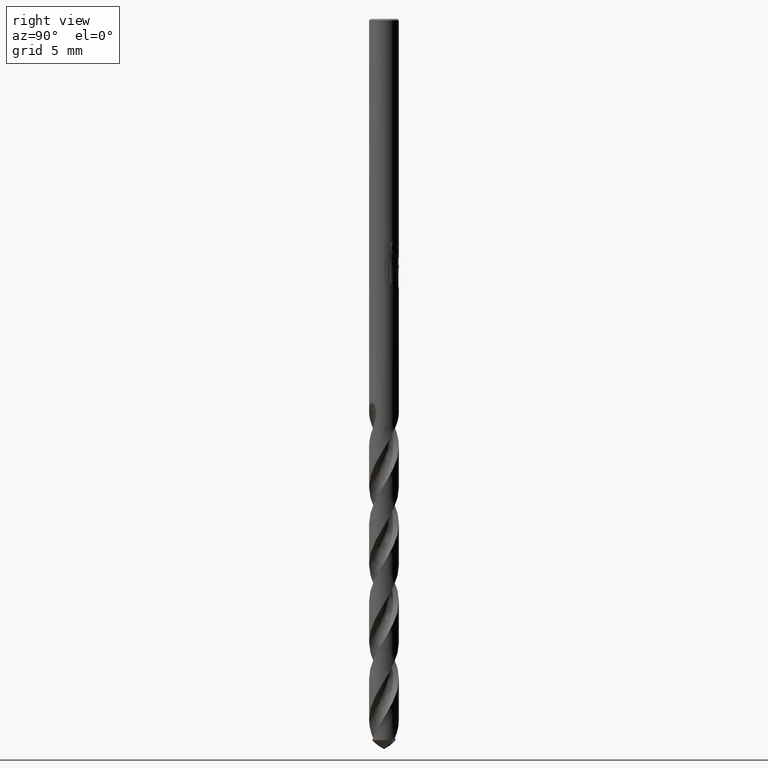
[diagram: clean part render]
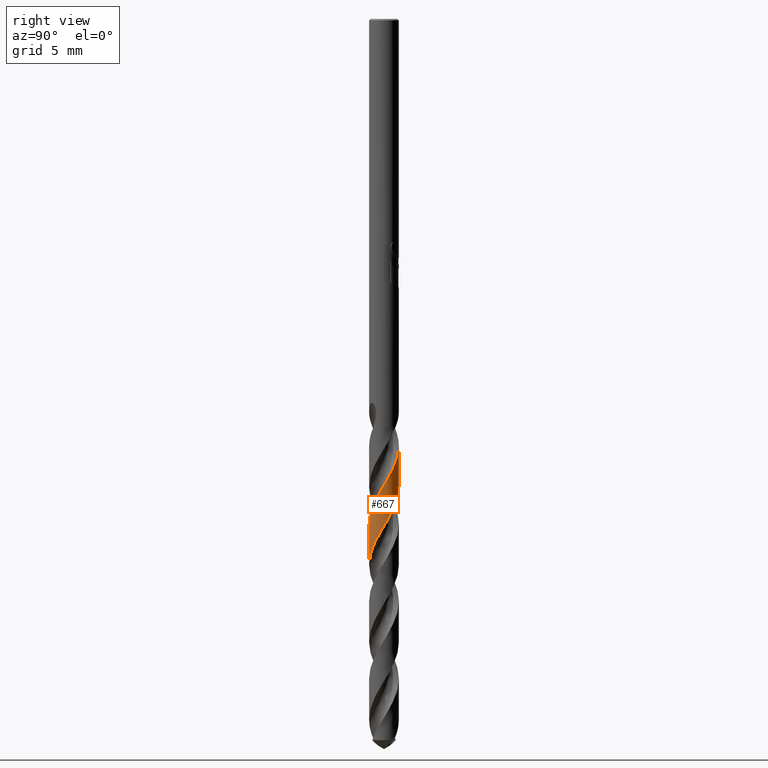
[diagram: same view with one face highlighted and labeled with its STEP entity id]
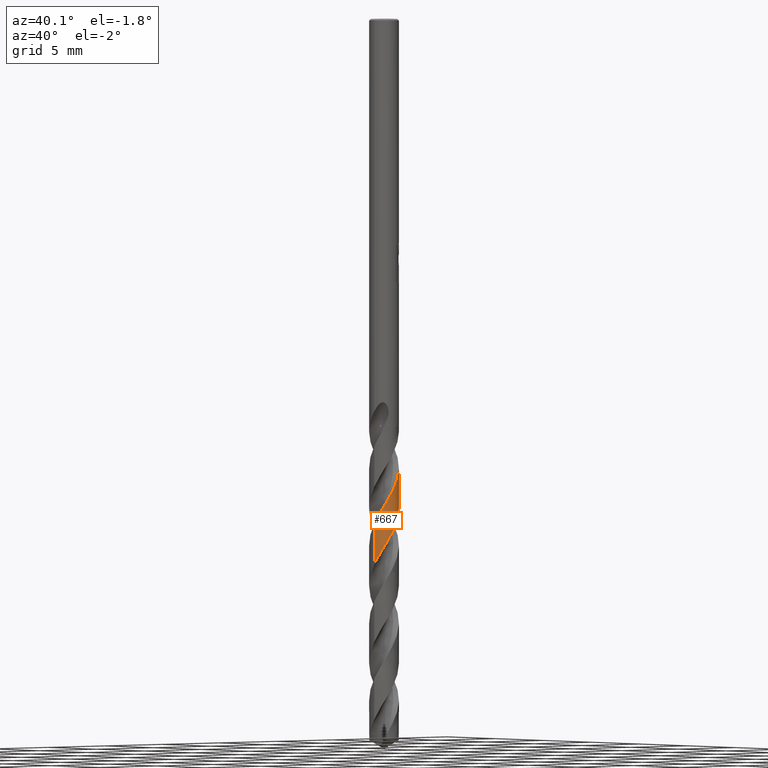
[diagram: same view with one face highlighted and labeled with its STEP entity id]
A machine part, right view. The second image highlights one B-rep face of the part: STEP entity #667.
A second angle (auxiliary view) of the same face is appended — the face is thin or edge-on in the first view.
In plain terms, the highlighted conical surface has half-angle 0 deg.
Its self-contained STEP definition (entity closure, byte-faithful):
#293=EDGE_CURVE('',#393,#299,#824,.T.);
#299=VERTEX_POINT('',#832);
#393=VERTEX_POINT('',#936);
#433=EDGE_CURVE('',#393,#505,#977,.T.);
#505=VERTEX_POINT('',#1054);
#531=VERTEX_POINT('',#1083);
#667=ADVANCED_FACE('',(#1226),#1227,.T.);
#773=EDGE_CURVE('',#531,#505,#1348,.T.);
#779=EDGE_CURVE('',#531,#299,#1355,.T.);
#824=LINE('',#1397,#1398);
#832=CARTESIAN_POINT('',(-1.51799023464849E-010,0.999919146917069,-31.4206878027284));
#936=CARTESIAN_POINT('',(1.0652477144257E-014,0.999906096836467,-28.6802831870996));
#977=B_SPLINE_CURVE_WITH_KNOTS('',3,(#2599,#2600,#2601,#2602,#2603,#2604,#2605,#2606,#2607,#2608,#2609,#2610,#2611,#2612,#2613,#2614,#2615,#2616,#2617,#2618,#2619,#2620,#2621,#2622,#2623,#2624,#2625,#2626,#2627,#2628,#2629,#2630,#2631,#2632,#2633,#2634,#2635,#2636,#2637,#2638,#2639,#2640,#2641,#2642,#2643,#2644,#2645,#2646,#2647,#2648,#2649,#2650,#2651,#2652,#2653,#2654,#2655,#2656,#2657,#2658,#2659,#2660,#2661,#2662,#2663,#2664,#2665,#2666,#2667,#2668,#2669,#2670,#2671,#2672,#2673,#2674,#2675,#2676,#2677,#2678,#2679,#2680,#2681,#2682,#2683,#2684,#2685,#2686,#2687,#2688,#2689,#2690,#2691,#2692,#2693,#2694,#2695,#2696,#2697,#2698,#2699,#2700,#2701,#2702,#2703,#2704,#2705,#2706,#2707,#2708,#2709,#2710,#2711,#2712,#2713,#2714,#2715,#2716,#2717,#2718,#2719,#2720,#2721,#2722,#2723,#2724,#2725,#2726,#2727,#2728,#2729,#2730,#2731,#2732,#2733,#2734,#2735,#2736,#2737,#2738,#2739,#2740,#2741,#2742,#2743,#2744,#2745,#2746,#2747,#2748,#2749,#2750,#2751,#2752,#2753,#2754,#2755,#2756,#2757,#2758,#2759,#2760,#2761,#2762,#2763,#2764,#2765,#2766,#2767,#2768,#2769,#2770,#2771,#2772,#2773,#2774,#2775,#2776,#2777,#2778,#2779,#2780,#2781,#2782,#2783,#2784,#2785,#2786,#2787,#2788,#2789,#2790,#2791,#2792,#2793,#2794,#2795,#2796,#2797,#2798,#2799,#2800,#2801,#2802,#2803,#2804,#2805,#2806),.UNSPECIFIED.,.F.,.F.,(4,2,2,2,2,2,2,2,2,2,2,2,2,2,2,2,2,2,2,2,2,2,2,2,2,2,2,2,2,2,2,2,2,2,2,2,2,2,2,2,2,2,2,2,2,2,2,2,2,2,2,2,2,2,2,2,2,2,2,2,2,2,2,2,2,2,2,2,2,2,2,2,2,2,2,2,2,2,2,2,2,2,2,2,2,2,2,2,2,2,2,2,2,2,2,2,2,2,2,2,2,2,2,4),(0.0,0.070093670708242,0.0892226509933403,0.0981457888768246,0.103952079739878,0.108542523141387,0.112137212113539,0.114929148139967,0.117082761360161,0.118734678135138,0.119996056034912,0.120955781249582,0.12168394898939,0.122235228024858,0.24480868383175,0.273356355975355,0.288902510916104,0.301907356563827,0.317265195362751,0.344957297456819,0.379086675039331,0.424483255215321,0.565256895664594,0.630425794679281,0.679644420351133,0.733074871864472,0.762228760970097,0.835259402492003,1.0057197183772,1.1658654022676,1.18585962247996,1.52860160674236,1.57313255818488,2.03668523874026,2.22333953402721,2.45809219165768,2.94994322032421,3.25617156440019,3.8288138071226,3.94217262629708,4.36112238801579,4.53271253655954,4.80302610480046,5.30941364745821,5.5795891243931,6.13781468433169,6.36980223202512,6.95994976968794,7.01331592364357,7.40012039465199,7.75912614930561,7.78469109723106,8.16815858082124,8.5266956302814,8.55259748258698,8.92980494258499,9.28733368322655,9.34033971356227,9.72933461668136,9.9084120232756,10.2333849386378,10.7985280560881,10.9129363589856,11.3259394095172,11.5042181303728,11.7777920299031,12.2838220434481,12.5527120870136,13.1096086441436,13.3415945511472,13.9304186020947,13.983751450188,14.3694780677714,14.7278340101031,14.75340024316,15.1353898038781,15.4932034728304,15.5191530255325,15.8942037479938,16.2508823478335,16.3041844856681,16.6895760345817,17.0476604404329,17.0604604679671,17.4310471707016,18.1507132899162,18.5013784739701,18.7488030849239,19.3176892963192,19.4300091250434,19.8481253783219,20.0187993666651,20.2886075464374,20.7940084789581,21.0618729570711,21.619220727253,21.8500499881893,22.4371133771515,22.4899614126565,22.8779147357416,23.4854494898643,23.7862900006021,23.9381718812205,24.0892537509298),.UNSPECIFIED.);
#1054=CARTESIAN_POINT('',(2.27809062708682E-016,-0.999930863154706,-33.8809968741904));
#1083=CARTESIAN_POINT('',(1.37562760391856E-012,-0.999943911893831,-36.6211197901034));
#1226=FACE_OUTER_BOUND('',#5834,.T.);
#1227=CONICAL_SURFACE('',#5835,0.99995,4.76209992157318E-006);
#1348=LINE('',#7771,#7772);
#1355=B_SPLINE_CURVE_WITH_KNOTS('',3,(#7782,#7783,#7784,#7785,#7786,#7787,#7788,#7789,#7790,#7791,#7792,#7793,#7794,#7795,#7796,#7797,#7798,#7799,#7800,#7801,#7802,#7803,#7804,#7805,#7806,#7807,#7808,#7809,#7810,#7811,#7812,#7813,#7814,#7815,#7816,#7817,#7818,#7819,#7820,#7821,#7822,#7823,#7824,#7825,#7826,#7827,#7828,#7829,#7830,#7831,#7832,#7833,#7834,#7835,#7836,#7837,#7838,#7839,#7840,#7841,#7842,#7843,#7844,#7845,#7846,#7847,#7848,#7849,#7850,#7851,#7852,#7853,#7854,#7855,#7856,#7857,#7858,#7859,#7860,#7861,#7862,#7863,#7864,#7865,#7866,#7867,#7868,#7869,#7870,#7871,#7872,#7873,#7874,#7875,#7876,#7877,#7878,#7879,#7880,#7881,#7882,#7883,#7884,#7885,#7886,#7887,#7888,#7889,#7890,#7891,#7892,#7893,#7894,#7895,#7896,#7897,#7898,#7899,#7900,#7901,#7902,#7903,#7904,#7905,#7906,#7907,#7908,#7909,#7910,#7911,#7912,#7913,#7914,#7915,#7916,#7917,#7918,#7919,#7920,#7921,#7922,#7923,#7924,#7925,#7926,#7927,#7928,#7929,#7930,#7931,#7932,#7933,#7934,#7935,#7936,#7937,#7938,#7939,#7940,#7941,#7942,#7943),.UNSPECIFIED.,.F.,.F.,(4,2,2,2,2,2,2,2,2,2,2,2,2,2,2,2,2,2,2,2,2,2,2,2,2,2,2,2,2,2,2,2,2,2,2,2,2,2,2,2,2,2,2,2,2,2,2,2,2,2,2,2,2,2,2,2,2,2,2,2,2,2,2,2,2,2,2,2,2,2,2,2,2,2,2,2,2,2,2,2,4),(0.0,0.140564455657881,0.705910972769532,0.96913414407209,1.35393639490201,1.53594426473142,1.7530889950736,2.45448441391358,2.49523314449073,3.09830556355897,3.34016229741105,4.03058293585882,4.11538521269099,4.75953051351781,4.95781017947195,5.33016819367588,5.51299303997374,5.73848300044366,6.43810748282622,6.4800193485302,7.07575574318855,7.59217081390022,7.95721429921044,8.15742826828851,8.53060160815402,8.7143819419641,9.09848745840183,9.45959927504986,10.0113818257194,10.3773914054012,10.5676570087411,10.9532641035751,11.1367819995707,11.3497099029085,12.0661004877584,12.1064505496225,12.7260932607966,13.1069669425992,13.4657956578065,13.9984170846046,14.3614654606973,14.5547068180242,14.9317204920314,15.1141059748938,15.3324123124755,16.036191029549,16.0772770219455,16.6808370477866,16.9232669903893,17.6134567355966,17.6988892302687,18.3416180911916,18.5429115427709,18.9133919437673,19.0967365593222,19.4801550427055,19.8383239885714,20.4003267929132,20.7656810762996,20.9518643670263,21.3422117921762,21.5251617782646,21.7342006610223,22.1053374795917,22.4338506619976,22.4534439191066,23.0081590553991,23.8180861949536,23.9479194944267,24.0768830279872,24.163270212141,24.2538189139902,24.3949603098037,24.5084417014939,24.5931835029819,24.6441638688701,24.689904101752,24.7480899906125,24.86688419515,25.1213909236893,25.4279416749134),.UNSPECIFIED.);
#1397=CARTESIAN_POINT('',(-1.22355463160886E-016,0.99995,-37.8995696904862));
#1398=VECTOR('',#8391,1.0);
#2599=CARTESIAN_POINT('',(-0.695006639413528,0.71886426311742,-27.405));
#2600=CARTESIAN_POINT('',(-0.686753916768532,0.726843229698256,-27.4253502132792));
#2601=CARTESIAN_POINT('',(-0.678323015206344,0.734720573492868,-27.445708737283));
#2602=CARTESIAN_POINT('',(-0.667299952437083,0.744662066626922,-27.4716005979767));
#2603=CARTESIAN_POINT('',(-0.664921790348519,0.746786438456378,-27.4771456817759));
#2604=CARTESIAN_POINT('',(-0.661409255279312,0.749893888844219,-27.4852733811152));
#2605=CARTESIAN_POINT('',(-0.660288507372421,0.750880929202602,-27.4878575092011));
#2606=CARTESIAN_POINT('',(-0.658432427064547,0.752508188052604,-27.4921217399208));
#2607=CARTESIAN_POINT('',(-0.657699276534681,0.753149065441544,-27.4938021799012));
#2608=CARTESIAN_POINT('',(-0.656383716012707,0.7542956601953,-27.4968104643701));
#2609=CARTESIAN_POINT('',(-0.655801918011095,0.754801552819003,-27.4981383901501));
#2610=CARTESIAN_POINT('',(-0.654762789199801,0.75570299854625,-27.5005057279552));
#2611=CARTESIAN_POINT('',(-0.654305849341278,0.756098669678374,-27.5015452072493));
#2612=CARTESIAN_POINT('',(-0.65349294986344,0.756801281530981,-27.5033917411134));
#2613=CARTESIAN_POINT('',(-0.653137234249793,0.757108299069921,-27.5041988453015));
#2614=CARTESIAN_POINT('',(-0.65250649155641,0.757651916042392,-27.505628344354));
#2615=CARTESIAN_POINT('',(-0.652231613782794,0.757888564023244,-27.5062507732045));
#2616=CARTESIAN_POINT('',(-0.651745513181739,0.758306597509196,-27.5073505232775));
#2617=CARTESIAN_POINT('',(-0.651534380223361,0.758488012947103,-27.5078278665955));
#2618=CARTESIAN_POINT('',(-0.651161806637446,0.75880787533276,-27.5086696366418));
#2619=CARTESIAN_POINT('',(-0.651000419269214,0.758946340464901,-27.5090340774535));
#2620=CARTESIAN_POINT('',(-0.65071610988029,0.759190111235994,-27.5096757663384));
#2621=CARTESIAN_POINT('',(-0.65059321913052,0.759295427704186,-27.5099530230204));
#2622=CARTESIAN_POINT('',(-0.650377013084256,0.759480623642356,-27.5104406189358));
#2623=CARTESIAN_POINT('',(-0.650283716070796,0.759560509412632,-27.510650963144));
#2624=CARTESIAN_POINT('',(-0.650119742914925,0.759700859415881,-27.5110205411348));
#2625=CARTESIAN_POINT('',(-0.650049077239646,0.759761327407562,-27.5111797780874));
#2626=CARTESIAN_POINT('',(-0.634263197970109,0.773265348984374,-27.5467434081671));
#2627=CARTESIAN_POINT('',(-0.618091721199027,0.786268234308424,-27.5813691539059));
#2628=CARTESIAN_POINT('',(-0.597112869549945,0.802049225557741,-27.6243469517687));
#2629=CARTESIAN_POINT('',(-0.593118582100216,0.805007721581712,-27.6324500303653));
#2630=CARTESIAN_POINT('',(-0.586895794777429,0.809544959485163,-27.6449629053831));
#2631=CARTESIAN_POINT('',(-0.584692888697846,0.811137484505697,-27.6493714128908));
#2632=CARTESIAN_POINT('',(-0.58063001811265,0.814049401456039,-27.657465982856));
#2633=CARTESIAN_POINT('',(-0.578773428977938,0.815370477906136,-27.6611512050839));
#2634=CARTESIAN_POINT('',(-0.574710915180997,0.818240301669586,-27.6691871524839));
#2635=CARTESIAN_POINT('',(-0.572503308006053,0.819786468027862,-27.6735361711871));
#2636=CARTESIAN_POINT('',(-0.566292602875384,0.824098947190494,-27.6857260027351));
#2637=CARTESIAN_POINT('',(-0.562274739911441,0.826845598469103,-27.69355945903));
#2638=CARTESIAN_POINT('',(-0.553253988293155,0.832915979026763,-27.711052678553));
#2639=CARTESIAN_POINT('',(-0.548246152952279,0.83622077976043,-27.7207002484902));
#2640=CARTESIAN_POINT('',(-0.536512936314599,0.843813244860268,-27.7432048699239));
#2641=CARTESIAN_POINT('',(-0.529787962963132,0.848052427439174,-27.7560441851921));
#2642=CARTESIAN_POINT('',(-0.501649246832621,0.865317924127809,-27.8097335469335));
#2643=CARTESIAN_POINT('',(-0.480027388163827,0.877487083075364,-27.8507251090004));
#2644=CARTESIAN_POINT('',(-0.448028556968267,0.893982697163793,-27.9105244663407));
#2645=CARTESIAN_POINT('',(-0.437823760084602,0.899024296675206,-27.9294722045672));
#2646=CARTESIAN_POINT('',(-0.419782952585181,0.90755792205989,-27.9627150719036));
#2647=CARTESIAN_POINT('',(-0.411972758605289,0.911129908574778,-27.9770246068078));
#2648=CARTESIAN_POINT('',(-0.39558930854043,0.918369103900306,-28.0068562455782));
#2649=CARTESIAN_POINT('',(-0.387003304509916,0.922020362989878,-28.0223857662019));
#2650=CARTESIAN_POINT('',(-0.373645491477292,0.927481086105418,-28.0463750296144));
#2651=CARTESIAN_POINT('',(-0.368912419384235,0.929373923664618,-28.0548424616103));
#2652=CARTESIAN_POINT('',(-0.352262386837468,0.935885140999944,-28.0845121112813));
#2653=CARTESIAN_POINT('',(-0.34025928024056,0.940315969726997,-28.1056920511544));
#2654=CARTESIAN_POINT('',(-0.299955542492785,0.954319807017216,-28.176300233873));
#2655=CARTESIAN_POINT('',(-0.271298246767259,0.962860047691806,-28.2256351193585));
#2656=CARTESIAN_POINT('',(-0.215025468129447,0.976914639000762,-28.3214634848969));
#2657=CARTESIAN_POINT('',(-0.187520090511672,0.982563819635035,-28.3678331633429));
#2658=CARTESIAN_POINT('',(-0.156385422201784,0.987605983937985,-28.4200878338204));
#2659=CARTESIAN_POINT('',(-0.152925982237492,0.988147603981866,-28.4258901622732));
#2660=CARTESIAN_POINT('',(-0.0901077499026485,0.99764472430652,-28.5311712174467));
#2661=CARTESIAN_POINT('',(-0.0300263996940724,1.00126029162375,-28.6305722496939));
#2662=CARTESIAN_POINT('',(0.0378516387060977,0.999220208993788,-28.7429434680311));
#2663=CARTESIAN_POINT('',(0.0456524561608959,0.998894259336931,-28.7558576520909));
#2664=CARTESIAN_POINT('',(0.134612600613999,0.994132846492307,-28.903274161865));
#2665=CARTESIAN_POINT('',(0.21496417253504,0.979905880997458,-29.0375734821443));
#2666=CARTESIAN_POINT('',(0.32400406634097,0.946525438066899,-29.2262523226919));
#2667=CARTESIAN_POINT('',(0.354820349367274,0.935410396564348,-29.280364161259));
#2668=CARTESIAN_POINT('',(0.423045643601221,0.906943991137279,-29.4026367892316));
#2669=CARTESIAN_POINT('',(0.460005384697146,0.888766476798985,-29.4706688088671));
#2670=CARTESIAN_POINT('',(0.570545284234841,0.825665380552749,-29.6816282771529));
#2671=CARTESIAN_POINT('',(0.639602602364786,0.77342034697775,-29.8239649566117));
#2672=CARTESIAN_POINT('',(0.739439529402851,0.675234307444447,-30.055563235672));
#2673=CARTESIAN_POINT('',(0.774623045609713,0.634559193072659,-30.1441952913441));
#2674=CARTESIAN_POINT('',(0.865702173059835,0.510352364155037,-30.3993845764073));
#2675=CARTESIAN_POINT('',(0.91256587458917,0.420892054422219,-30.5647266035907));
#2676=CARTESIAN_POINT('',(0.951799081395376,0.307093153025406,-30.7638236361788));
#2677=CARTESIAN_POINT('',(0.957716592485911,0.288108311073887,-30.7967031880622));
#2678=CARTESIAN_POINT('',(0.982824500445155,0.198208484021114,-30.9512646293067));
#2679=CARTESIAN_POINT('',(0.994733752909929,0.125465949533516,-31.0727953982745));
#2680=CARTESIAN_POINT('',(1.00012926131684,0.0220058066491092,-31.2442705923059));
#2681=CARTESIAN_POINT('',(1.00033912012399,-0.00811978019228018,-31.2940537463489));
#2682=CARTESIAN_POINT('',(0.997375026846471,-0.085631527150049,-31.4223420164812));
#2683=CARTESIAN_POINT('',(0.992190988925557,-0.132822120102011,-31.5006704724957));
#2684=CARTESIAN_POINT('',(0.96775721157738,-0.266773115117882,-31.7262874308687));
#2685=CARTESIAN_POINT('',(0.940254799042581,-0.351662420484673,-31.8728099234179));
#2686=CARTESIAN_POINT('',(0.881378462479163,-0.474622383265117,-32.0982829453705));
#2687=CARTESIAN_POINT('',(0.857892023454633,-0.515859116582686,-32.1765843877127));
#2688=CARTESIAN_POINT('',(0.777240614668079,-0.636650498911196,-32.4172511404923));
#2689=CARTESIAN_POINT('',(0.711193145679822,-0.709689806378089,-32.5785841700248));
#2690=CARTESIAN_POINT('',(0.604080003694383,-0.797870843264288,-32.8080425652806));
#2691=CARTESIAN_POINT('',(0.571105299565382,-0.821793944685254,-32.8753488316377));
#2692=CARTESIAN_POINT('',(0.449492350279048,-0.899175823904581,-33.1142096257867));
#2693=CARTESIAN_POINT('',(0.35403844609804,-0.940875675472023,-33.2845707550027));
#2694=CARTESIAN_POINT('',(0.244764201641353,-0.969554584945675,-33.4714362954081));
#2695=CARTESIAN_POINT('',(0.235671769935242,-0.971804776935171,-33.4869283746576));
#2696=CARTESIAN_POINT('',(0.160425624276658,-0.989308701809274,-33.6147883372985));
#2697=CARTESIAN_POINT('',(0.0929163607015371,-0.997914884801917,-33.7271120608067));
#2698=CARTESIAN_POINT('',(-0.037918554517366,-1.00119597447331,-33.9438175932776));
#2699=CARTESIAN_POINT('',(-0.100924789852824,-0.996820689435417,-34.0477665711908));
#2700=CARTESIAN_POINT('',(-0.16754887935839,-0.985805207916072,-34.1594739124959));
#2701=CARTESIAN_POINT('',(-0.17197175176866,-0.985043303272319,-34.1668992672581));
#2702=CARTESIAN_POINT('',(-0.242646814391678,-0.972378109269838,-34.2857247507943));
#2703=CARTESIAN_POINT('',(-0.307525355377784,-0.953846759576048,-34.3970979707006));
#2704=CARTESIAN_POINT('',(-0.428498936189091,-0.905658033689903,-34.6127230132165));
#2705=CARTESIAN_POINT('',(-0.484644436537839,-0.876900312496369,-34.7165528564608));
#2706=CARTESIAN_POINT('',(-0.54156599610197,-0.840593668830966,-34.8282326979777));
#2707=CARTESIAN_POINT('',(-0.545383592440042,-0.838121858617368,-34.8357559561481));
#2708=CARTESIAN_POINT('',(-0.604540136260077,-0.799243941078773,-34.9528914053511));
#2709=CARTESIAN_POINT('',(-0.656130619533818,-0.757462775464233,-35.0624910792383));
#2710=CARTESIAN_POINT('',(-0.74782394249175,-0.666763161968653,-35.2760719715944));
#2711=CARTESIAN_POINT('',(-0.788205751207529,-0.618508581799039,-35.3796515612292));
#2712=CARTESIAN_POINT('',(-0.829085110562936,-0.559090094874818,-35.4989458948367));
#2713=CARTESIAN_POINT('',(-0.834254218292357,-0.551347305109489,-35.514344148414));
#2714=CARTESIAN_POINT('',(-0.876450904154172,-0.486189054909068,-35.6428258771342));
#2715=CARTESIAN_POINT('',(-0.907609142107263,-0.425195949814982,-35.7558583581695));
#2716=CARTESIAN_POINT('',(-0.943675229274378,-0.332185440337191,-35.9210320314239));
#2717=CARTESIAN_POINT('',(-0.953659205334565,-0.302334537207727,-35.9730573224241));
#2718=CARTESIAN_POINT('',(-0.977759707004186,-0.217095697406817,-36.1195755033947));
#2719=CARTESIAN_POINT('',(-0.988551194326964,-0.160947801628575,-36.2137665078166));
#2720=CARTESIAN_POINT('',(-1.00483612882753,-0.00555999392392716,-36.4726540335806));
#2721=CARTESIAN_POINT('',(-1.00044428769664,0.0941633443102953,-36.6361247902674));
#2722=CARTESIAN_POINT('',(-0.977551425517382,0.211394081807374,-36.8336701359631));
#2723=CARTESIAN_POINT('',(-0.973104620585946,0.231000961307233,-36.8669057010192));
#2724=CARTESIAN_POINT('',(-0.949900690907907,0.32069209409509,-37.0202915979203));
#2725=CARTESIAN_POINT('',(-0.924134390380528,0.388761067437378,-37.1403090519516));
#2726=CARTESIAN_POINT('',(-0.877020112880812,0.48136421732638,-37.3122853406539));
#2727=CARTESIAN_POINT('',(-0.86150621467564,0.508610355345955,-37.3640923203327));
#2728=CARTESIAN_POINT('',(-0.818993489498733,0.575725198477796,-37.4954853363186));
#2729=CARTESIAN_POINT('',(-0.790374652667592,0.614420530692086,-37.5748847037179));
#2730=CARTESIAN_POINT('',(-0.70126575406703,0.71834615970371,-37.8017182063994));
#2731=CARTESIAN_POINT('',(-0.63464731238641,0.777844130684637,-37.9483755117807));
#2732=CARTESIAN_POINT('',(-0.521844091305756,0.85429334459571,-38.1737412382991));
#2733=CARTESIAN_POINT('',(-0.480898765627594,0.877991874327116,-38.2517990942533));
#2734=CARTESIAN_POINT('',(-0.350558561572465,0.941583643623026,-38.4921007295296));
#2735=CARTESIAN_POINT('',(-0.256773645941833,0.971373649869129,-38.6533170188177));
#2736=CARTESIAN_POINT('',(-0.119824411476885,0.993587452317887,-38.8827660136803));
#2737=CARTESIAN_POINT('',(-0.0792198691903892,0.997644292224647,-38.9501818849833));
#2738=CARTESIAN_POINT('',(0.0648261644408162,1.00319673105455,-39.1890503369547));
#2739=CARTESIAN_POINT('',(0.168228789848566,0.991128107587619,-39.3593117667112));
#2740=CARTESIAN_POINT('',(0.277023714758896,0.960864978249517,-39.5460903442484));
#2741=CARTESIAN_POINT('',(0.286021087886315,0.958225277622019,-39.561598234159));
#2742=CARTESIAN_POINT('',(0.359775745419039,0.935455551821412,-39.6893449624786));
#2743=CARTESIAN_POINT('',(0.422359870207525,0.908915401062738,-39.8015409214051));
#2744=CARTESIAN_POINT('',(0.536970219699267,0.845902400182247,-40.0181005085615));
#2745=CARTESIAN_POINT('',(0.589193292845565,0.810398250624942,-40.1220328146723));
#2746=CARTESIAN_POINT('',(0.641205468825297,0.767331740976666,-40.2337350868614));
#2747=CARTESIAN_POINT('',(0.644648845604042,0.764441220540653,-40.2411728735483));
#2748=CARTESIAN_POINT('',(0.699226287327762,0.71799566457223,-40.3597685523926));
#2749=CARTESIAN_POINT('',(0.745854942755058,0.669428288595159,-40.4709013809104));
#2750=CARTESIAN_POINT('',(0.82604446445556,0.567039415425263,-40.6862499989589));
#2751=CARTESIAN_POINT('',(0.860083049218522,0.513952335555321,-40.7900466212903));
#2752=CARTESIAN_POINT('',(0.891004891181469,0.453938011334622,-40.9017179483927));
#2753=CARTESIAN_POINT('',(0.893067584242251,0.449866417687105,-40.9092677619003));
#2754=CARTESIAN_POINT('',(0.924514737480465,0.386723492653713,-41.0259860524446));
#2755=CARTESIAN_POINT('',(0.948002775981741,0.324916272414912,-41.1351460376702));
#2756=CARTESIAN_POINT('',(0.981619605220943,0.200721654515048,-41.3482131834101));
#2757=CARTESIAN_POINT('',(0.992281054823529,0.138752128273821,-41.4517238425782));
#2758=CARTESIAN_POINT('',(0.997777090188427,0.0668119541803517,-41.5710579256033));
#2759=CARTESIAN_POINT('',(0.998359821529904,0.0574519465296993,-41.5865681345096));
#2760=CARTESIAN_POINT('',(1.00207185175236,-0.0196408238902493,-41.7143010229554));
#2761=CARTESIAN_POINT('',(0.998436031607347,-0.0875135716107802,-41.8264809989604));
#2762=CARTESIAN_POINT('',(0.978231988853873,-0.216723738906868,-42.0430211230321));
#2763=CARTESIAN_POINT('',(0.962640001604031,-0.277916196852699,-42.1469501604798));
#2764=CARTESIAN_POINT('',(0.94062306411142,-0.33937414416436,-42.2549373936865));
#2765=CARTESIAN_POINT('',(0.93985617094631,-0.341492272399253,-42.258663806052));
#2766=CARTESIAN_POINT('',(0.916667685352149,-0.404868006585401,-42.3703148851898));
#2767=CARTESIAN_POINT('',(0.888320271119357,-0.463768558599271,-42.4782440084467));
#2768=CARTESIAN_POINT('',(0.788680161938753,-0.627662406346478,-42.7958898126613));
#2769=CARTESIAN_POINT('',(0.702958183637244,-0.722370335515099,-43.0033569079751));
#2770=CARTESIAN_POINT('',(0.552630880999388,-0.835675970719435,-43.3152048091599));
#2771=CARTESIAN_POINT('',(0.500022479477483,-0.868183757273476,-43.4170809779756));
#2772=CARTESIAN_POINT('',(0.405692477550411,-0.915022467844324,-43.5912520083081));
#2773=CARTESIAN_POINT('',(0.365473268535533,-0.931814022209443,-43.663210860847));
#2774=CARTESIAN_POINT('',(0.229681007036042,-0.978372146065053,-43.9010697765702));
#2775=CARTESIAN_POINT('',(0.130640916436772,-0.996457525749521,-44.0658968022336));
#2776=CARTESIAN_POINT('',(0.0107381066165294,-1.00011825833702,-44.2642867385257));
#2777=CARTESIAN_POINT('',(-0.00903581397154658,-1.00013497880045,-44.2969773990934));
#2778=CARTESIAN_POINT('',(-0.102342640436742,-0.997447915438514,-44.4515289015777));
#2779=CARTESIAN_POINT('',(-0.175457937218122,-0.987216708749126,-44.5732393724294));
#2780=CARTESIAN_POINT('',(-0.275912126553741,-0.961634335476445,-44.7448016198239));
#2781=CARTESIAN_POINT('',(-0.304689789105093,-0.952908019868414,-44.7944916381613));
#2782=CARTESIAN_POINT('',(-0.377852797419124,-0.927066896978932,-44.9228129044513));
#2783=CARTESIAN_POINT('',(-0.421449427225678,-0.908075482181509,-45.0012682625773));
#2784=CARTESIAN_POINT('',(-0.542294576554512,-0.84486211201313,-45.2272364996318));
#2785=CARTESIAN_POINT('',(-0.615292601628564,-0.793293348695876,-45.3739783408085));
#2786=CARTESIAN_POINT('',(-0.715111404545527,-0.700582656672464,-45.5992746190324));
#2787=CARTESIAN_POINT('',(-0.74734770129535,-0.666083172088604,-45.6771779105046));
#2788=CARTESIAN_POINT('',(-0.838745016333204,-0.553263006165778,-45.9177521149974));
#2789=CARTESIAN_POINT('',(-0.888977304430699,-0.468338342079244,-46.0793878994039));
#2790=CARTESIAN_POINT('',(-0.941389173440904,-0.339736123219456,-46.3090523072778));
#2791=CARTESIAN_POINT('',(-0.954415542342138,-0.301199647790672,-46.3762576458159));
#2792=CARTESIAN_POINT('',(-0.992121453270396,-0.162319378616921,-46.6147119590385));
#2793=CARTESIAN_POINT('',(-1.00359630074804,-0.0589684314062471,-46.784769523164));
#2794=CARTESIAN_POINT('',(-0.998595665254315,0.0536637071773066,-46.9712321819434));
#2795=CARTESIAN_POINT('',(-0.998052930049265,0.0629566935558766,-46.9866267853196));
#2796=CARTESIAN_POINT('',(-0.992444568018656,0.140395920658205,-47.1151144194585));
#2797=CARTESIAN_POINT('',(-0.980537032468603,0.207852624710246,-47.2281686147256));
#2798=CARTESIAN_POINT('',(-0.932585030153615,0.376458857379641,-47.5184399256826));
#2799=CARTESIAN_POINT('',(-0.886997549087021,0.473991522221592,-47.6941503347334));
#2800=CARTESIAN_POINT('',(-0.797056741589461,0.606218893334785,-47.9590259904984));
#2801=CARTESIAN_POINT('',(-0.763820203032471,0.647601031162033,-48.0465909805931));
#2802=CARTESIAN_POINT('',(-0.709066201533681,0.705648416002296,-48.1785421067));
#2803=CARTESIAN_POINT('',(-0.689922282824406,0.724377153552844,-48.2227784529905));
#2804=CARTESIAN_POINT('',(-0.650281884559348,0.760159061167426,-48.3110793220681));
#2805=CARTESIAN_POINT('',(-0.629829891220908,0.777187936538501,-48.3550625865524));
#2806=CARTESIAN_POINT('',(-0.608731574648638,0.793376247455006,-48.3991393809724));
#5834=EDGE_LOOP('',(#8775,#8776,#8777,#8778));
#5835=AXIS2_PLACEMENT_3D('',#8779,#8780,#8781);
#7771=CARTESIAN_POINT('',(1.22553561540051E-016,-0.99995,-37.8995696904862));
#7772=VECTOR('',#8974,1.0);
#7782=CARTESIAN_POINT('',(-0.738484525051719,-0.67427042517015,-48.3991393809724));
#7783=CARTESIAN_POINT('',(-0.722199315005534,-0.692106272565409,-48.35898905715));
#7784=CARTESIAN_POINT('',(-0.705339529610619,-0.709276450287738,-48.3187399679762));
#7785=CARTESIAN_POINT('',(-0.617729785424609,-0.792308193506981,-48.117561982592));
#7786=CARTESIAN_POINT('',(-0.53816816169285,-0.848412606628382,-47.9591542025126));
#7787=CARTESIAN_POINT('',(-0.411158045886165,-0.912681508742219,-47.7237100044493));
#7788=CARTESIAN_POINT('',(-0.369552527325461,-0.930297163590966,-47.6485890662762));
#7789=CARTESIAN_POINT('',(-0.264753109744293,-0.966557372480458,-47.4645833204485));
#7790=CARTESIAN_POINT('',(-0.200442660016673,-0.981927470895965,-47.3561282568962));
#7791=CARTESIAN_POINT('',(-0.103973603421656,-0.99506552730784,-47.1954615719139));
#7792=CARTESIAN_POINT('',(-0.0728596298296796,-0.997823310659707,-47.1439326218183));
#7793=CARTESIAN_POINT('',(-0.00455217296671234,-1.00067453909161,-47.0306717324577));
#7794=CARTESIAN_POINT('',(0.0325771020062908,-1.00014922136005,-46.9688059508543));
#7795=CARTESIAN_POINT('',(0.188959270596307,-0.989245724266842,-46.7084358859468));
#7796=CARTESIAN_POINT('',(0.305707973679284,-0.959572063556649,-46.5143929488935));
#7797=CARTESIAN_POINT('',(0.420677671741299,-0.907225690007048,-46.3040624505032));
#7798=CARTESIAN_POINT('',(0.426957484545644,-0.904287404632888,-46.2925092983669));
#7799=CARTESIAN_POINT('',(0.52609439421267,-0.856632316758311,-46.1094570126849));
#7800=CARTESIAN_POINT('',(0.611614923219036,-0.797865416588582,-45.9410527638497));
#7801=CARTESIAN_POINT('',(0.716885875927187,-0.698403557398639,-45.7014017591294));
#7802=CARTESIAN_POINT('',(0.745151172716409,-0.668149737055001,-45.6325083997187));
#7803=CARTESIAN_POINT('',(0.846306494784769,-0.545523237120697,-45.3684316947228));
#7804=CARTESIAN_POINT('',(0.904506802091092,-0.442318284594167,-45.1773920805992));
#7805=CARTESIAN_POINT('',(0.948239372122953,-0.317832728097977,-44.9579148437989));
#7806=CARTESIAN_POINT('',(0.952722592307633,-0.304131180416973,-44.9338834902299));
#7807=CARTESIAN_POINT('',(0.98880663848588,-0.18518052744856,-44.7272045356481));
#7808=CARTESIAN_POINT('',(1.00316935284512,-0.0755265524892393,-44.5482782947757));
#7809=CARTESIAN_POINT('',(0.998226970857536,0.0681871703622886,-44.3098118033893));
#7810=CARTESIAN_POINT('',(0.995352948405098,0.101858463290165,-44.2534818325813));
#7811=CARTESIAN_POINT('',(0.982188357173267,0.198224366580504,-44.092014779339));
#7812=CARTESIAN_POINT('',(0.967616208646302,0.260266351971846,-43.9873997487296));
#7813=CARTESIAN_POINT('',(0.93714724149427,0.350272334577914,-43.8306007354687));
#7814=CARTESIAN_POINT('',(0.925740546419785,0.379387239958744,-43.7790329503057));
#7815=CARTESIAN_POINT('',(0.897305876097893,0.443033935710796,-43.6636070012304));
#7816=CARTESIAN_POINT('',(0.879623673713499,0.477164172754448,-43.5995999179408));
#7817=CARTESIAN_POINT('',(0.799400228556712,0.612416719920957,-43.3383914320007));
#7818=CARTESIAN_POINT('',(0.721071717432096,0.702911528629259,-43.1455100604279));
#7819=CARTESIAN_POINT('',(0.623284372833302,0.781994301472576,-42.9362034188597));
#7820=CARTESIAN_POINT('',(0.617722208691774,0.78639531290022,-42.9243818005519));
#7821=CARTESIAN_POINT('',(0.53226363884951,0.852546701034206,-42.7444772765386));
#7822=CARTESIAN_POINT('',(0.443407953480435,0.902002266099788,-42.5792834322102));
#7823=CARTESIAN_POINT('',(0.26603709232243,0.967928801037208,-42.2663299027652));
#7824=CARTESIAN_POINT('',(0.179983198328796,0.987567810031899,-42.1202672236055));
#7825=CARTESIAN_POINT('',(0.0304203724141995,1.00143992401368,-41.8722912994017));
#7826=CARTESIAN_POINT('',(-0.0318201278840287,1.00138324211251,-41.7702306425811));
#7827=CARTESIAN_POINT('',(-0.127404566661899,0.992401015135547,-41.6110304881607));
#7828=CARTESIAN_POINT('',(-0.161001948686243,0.98750481164016,-41.5544368146233));
#7829=CARTESIAN_POINT('',(-0.2563757485849,0.968611790519179,-41.3930194069383));
#7830=CARTESIAN_POINT('',(-0.317260389422051,0.95042940782693,-41.2887059628722));
#7831=CARTESIAN_POINT('',(-0.405134201255511,0.91475483835804,-41.1322107378044));
#7832=CARTESIAN_POINT('',(-0.433525790166505,0.90164304112015,-41.0806386969442));
#7833=CARTESIAN_POINT('',(-0.519112542617691,0.857150920194061,-40.9209265413749));
#7834=CARTESIAN_POINT('',(-0.573913671307043,0.821474165488676,-40.81225084292));
#7835=CARTESIAN_POINT('',(-0.672873417007595,0.742253506095299,-40.6026327508775));
#7836=CARTESIAN_POINT('',(-0.717185294131617,0.69953089589547,-40.5017153477991));
#7837=CARTESIAN_POINT('',(-0.818594916441859,0.581923515336604,-40.2449868114184));
#7838=CARTESIAN_POINT('',(-0.869588934551328,0.50256127073063,-40.0890846862779));
#7839=CARTESIAN_POINT('',(-0.934797766701728,0.360496230219901,-39.8310714388432));
#7840=CARTESIAN_POINT('',(-0.955396355827141,0.301645882378218,-39.7288079678262));
#7841=CARTESIAN_POINT('',(-0.978175617313712,0.210071746601936,-39.5722045844872));
#7842=CARTESIAN_POINT('',(-0.984435954880597,0.178446877150586,-39.518461285887));
#7843=CARTESIAN_POINT('',(-0.998750606292269,0.0817991847153003,-39.356305899369));
#7844=CARTESIAN_POINT('',(-1.00198001256782,0.0161857921076621,-39.2485416826285));
#7845=CARTESIAN_POINT('',(-0.997189947745499,-0.0806253239972092,-39.0885710932637));
#7846=CARTESIAN_POINT('',(-0.994184817899785,-0.111707754439696,-39.0370511716718));
#7847=CARTESIAN_POINT('',(-0.984586581144885,-0.178343812516999,-38.9254984830411));
#7848=CARTESIAN_POINT('',(-0.977508195463067,-0.213743066209354,-38.865349259055));
#7849=CARTESIAN_POINT('',(-0.938388528798712,-0.36611458176961,-38.6040953760411));
#7850=CARTESIAN_POINT('',(-0.887185984616681,-0.476885560361333,-38.4076231344038));
#7851=CARTESIAN_POINT('',(-0.813663005234211,-0.581293119050283,-38.1948754347008));
#7852=CARTESIAN_POINT('',(-0.809664933869712,-0.58684989261496,-38.1834785026486));
#7853=CARTESIAN_POINT('',(-0.742953491580983,-0.677567801648206,-37.9961451671542));
#7854=CARTESIAN_POINT('',(-0.667170111709713,-0.752339015263871,-37.8235785508865));
#7855=CARTESIAN_POINT('',(-0.527891837208835,-0.851745211461275,-37.5401924610738));
#7856=CARTESIAN_POINT('',(-0.471290054818933,-0.88433035798103,-37.4316621593313));
#7857=CARTESIAN_POINT('',(-0.355793532563554,-0.936528011283509,-37.2221017714091));
#7858=CARTESIAN_POINT('',(-0.297559327921842,-0.956624208156466,-37.1211017112851));
#7859=CARTESIAN_POINT('',(-0.149224654098581,-0.992949092297788,-36.8685823929057));
#7860=CARTESIAN_POINT('',(-0.0580332707330558,-1.00243154838596,-36.7169685967634));
#7861=CARTESIAN_POINT('',(0.0955284822783572,-0.99731604134636,-36.4633333765432));
#7862=CARTESIAN_POINT('',(0.157330255329361,-0.989435558160912,-36.3611583002987));
#7863=CARTESIAN_POINT('',(0.250122825421102,-0.968717316577472,-36.203426150999));
#7864=CARTESIAN_POINT('',(0.281916721533923,-0.959945597886621,-36.1484433055983));
#7865=CARTESIAN_POINT('',(0.374408526113763,-0.929433273552373,-35.9867705570036));
#7866=CARTESIAN_POINT('',(0.433579433518753,-0.903365563152971,-35.880662719845));
#7867=CARTESIAN_POINT('',(0.517201767387645,-0.85636426862262,-35.7223580711615));
#7868=CARTESIAN_POINT('',(0.543695052960109,-0.839790057949262,-35.6708101158698));
#7869=CARTESIAN_POINT('',(0.600027797089361,-0.800773480487858,-35.5573055447826));
#7870=CARTESIAN_POINT('',(0.629432586065166,-0.777865625406259,-35.495215542564));
#7871=CARTESIAN_POINT('',(0.747792525923413,-0.674578821729575,-35.2342958168084));
#7872=CARTESIAN_POINT('',(0.823070958735742,-0.580281713212356,-35.0399177170882));
#7873=CARTESIAN_POINT('',(0.883198643936928,-0.468913267416842,-34.8291812551183));
#7874=CARTESIAN_POINT('',(0.886449126114357,-0.462739317914894,-34.817553600221));
#7875=CARTESIAN_POINT('',(0.936630664986026,-0.364942762399821,-34.6346154050431));
#7876=CARTESIAN_POINT('',(0.969262469088742,-0.266568697239353,-34.4663942232149));
#7877=CARTESIAN_POINT('',(0.993103213804088,-0.123818756405705,-34.2269020238067));
#7878=CARTESIAN_POINT('',(0.997366795278706,-0.0826177908383093,-34.1579780065168));
#7879=CARTESIAN_POINT('',(1.00393614621348,0.075947148035791,-33.894316417437));
#7880=CARTESIAN_POINT('',(0.988091069301638,0.193087065308629,-33.7036904059803));
#7881=CARTESIAN_POINT('',(0.947933282006336,0.318576630617238,-33.4845351078282));
#7882=CARTESIAN_POINT('',(0.943217329552829,0.332279964673976,-33.4603750352378));
#7883=CARTESIAN_POINT('',(0.900368331915633,0.448492195048158,-33.2544096568378));
#7884=CARTESIAN_POINT('',(0.845983423436226,0.544193928412243,-33.0762680646632));
#7885=CARTESIAN_POINT('',(0.755527515236829,0.655900238141272,-32.8379327642879));
#7886=CARTESIAN_POINT('',(0.73264944202365,0.681356596329483,-32.780882349355));
#7887=CARTESIAN_POINT('',(0.664065279838295,0.750221903146912,-32.6195096910319));
#7888=CARTESIAN_POINT('',(0.615424109544901,0.790633754251854,-32.5156789593093));
#7889=CARTESIAN_POINT('',(0.537301446904024,0.843880321516215,-32.3596692865335));
#7890=CARTESIAN_POINT('',(0.5106567020185,0.860262366127585,-32.3080899212047));
#7891=CARTESIAN_POINT('',(0.426163404476766,0.906914173439775,-32.1482940055048));
#7892=CARTESIAN_POINT('',(0.366069440372105,0.932797556368061,-32.0395426606916));
#7893=CARTESIAN_POINT('',(0.245600507803034,0.971211687908972,-31.8304279907407));
#7894=CARTESIAN_POINT('',(0.185839236596231,0.984396137637914,-31.7300780045323));
#7895=CARTESIAN_POINT('',(0.0301549368880414,1.00404919783345,-31.4706724286525));
#7896=CARTESIAN_POINT('',(-0.0661683235198309,1.00233028128501,-31.3115216833512));
#7897=CARTESIAN_POINT('',(-0.222436993319134,0.976855988370688,-31.0501945551338));
#7898=CARTESIAN_POINT('',(-0.282798771591892,0.961101826155468,-30.9478685278629));
#7899=CARTESIAN_POINT('',(-0.370937343573779,0.929106936141538,-30.7922107509228));
#7900=CARTESIAN_POINT('',(-0.40011747535074,0.916919427372441,-30.7394943332706));
#7901=CARTESIAN_POINT('',(-0.488732508621416,0.874860817487525,-30.5767019026326));
#7902=CARTESIAN_POINT('',(-0.545844975288704,0.840431856561825,-30.4673263229924));
#7903=CARTESIAN_POINT('',(-0.624217947552668,0.781764452475701,-30.3057252797825));
#7904=CARTESIAN_POINT('',(-0.648299129087411,0.761909142557163,-30.2542171281949));
#7905=CARTESIAN_POINT('',(-0.697753234408749,0.717100465777101,-30.1435999579022));
#7906=CARTESIAN_POINT('',(-0.722773866213816,0.691870199852743,-30.0843832967033));
#7907=CARTESIAN_POINT('',(-0.78835206811103,0.618303744158127,-29.9207679966562));
#7908=CARTESIAN_POINT('',(-0.825839547201061,0.567291906712232,-29.81685589196));
#7909=CARTESIAN_POINT('',(-0.887063124239315,0.464844546282743,-29.6199215353713));
#7910=CARTESIAN_POINT('',(-0.911608721918706,0.414589207457502,-29.5278674180468));
#7911=CARTESIAN_POINT('',(-0.932992620763499,0.359659721926498,-29.4296126140782));
#7912=CARTESIAN_POINT('',(-0.934180513532356,0.356562965545715,-29.4240816467865));
#7913=CARTESIAN_POINT('',(-0.968690439556052,0.265234166422015,-29.2613770932965));
#7914=CARTESIAN_POINT('',(-0.989481026963274,0.172496765325743,-29.1064065065218));
#7915=CARTESIAN_POINT('',(-1.00766276850188,-0.0603278871683423,-28.7211288933858));
#7916=CARTESIAN_POINT('',(-0.989574727183177,-0.198481700376152,-28.4919468398565));
#7917=CARTESIAN_POINT('',(-0.937303391110441,-0.348933322777412,-28.2297364113197));
#7918=CARTESIAN_POINT('',(-0.929361732239772,-0.369579014567051,-28.1935794260239));
#7919=CARTESIAN_POINT('',(-0.912073788988557,-0.41038517895127,-28.1216482705659));
#7920=CARTESIAN_POINT('',(-0.903202938681155,-0.42950183723322,-28.0879368961998));
#7921=CARTESIAN_POINT('',(-0.887485007708799,-0.46084073257251,-28.0312903967272));
#7922=CARTESIAN_POINT('',(-0.880964888541979,-0.473178787159706,-28.008539366582));
#7923=CARTESIAN_POINT('',(-0.867209170076392,-0.497959840687348,-27.9617182259691));
#7924=CARTESIAN_POINT('',(-0.859973994520044,-0.510343689664013,-27.9377044335752));
#7925=CARTESIAN_POINT('',(-0.841028561490478,-0.541260961991938,-27.8758880623207));
#7926=CARTESIAN_POINT('',(-0.82914636877236,-0.559251577683591,-27.8381023031855));
#7927=CARTESIAN_POINT('',(-0.807285337345083,-0.590236853780586,-27.769050898406));
#7928=CARTESIAN_POINT('',(-0.80055046340868,-0.599152277309695,-27.7476477690733));
#7929=CARTESIAN_POINT('',(-0.792278831699873,-0.61002577354522,-27.7222076036027));
#7930=CARTESIAN_POINT('',(-0.788636110189819,-0.614729939399975,-27.7114009450405));
#7931=CARTESIAN_POINT('',(-0.782613556930654,-0.622360156294485,-27.694185222821));
#7932=CARTESIAN_POINT('',(-0.780310254399478,-0.625246038617839,-27.6877436921523));
#7933=CARTESIAN_POINT('',(-0.775858396839913,-0.630759552689185,-27.6755665178735));
#7934=CARTESIAN_POINT('',(-0.773719031952073,-0.633382293062382,-27.6698284604895));
#7935=CARTESIAN_POINT('',(-0.76877762754844,-0.639376518337915,-27.6568350560977));
#7936=CARTESIAN_POINT('',(-0.765954919068644,-0.64275604399948,-27.6495949718059));
#7937=CARTESIAN_POINT('',(-0.757190240507948,-0.653106420282382,-27.6276711657615));
#7938=CARTESIAN_POINT('',(-0.751070364699547,-0.660141409753493,-27.6131107258865));
#7939=CARTESIAN_POINT('',(-0.73102927923199,-0.682507889874452,-27.567782501803));
#7940=CARTESIAN_POINT('',(-0.716266473000236,-0.698045771616689,-27.5376899887702));
#7941=CARTESIAN_POINT('',(-0.680929370179428,-0.732712386911077,-27.4726965691021));
#7942=CARTESIAN_POINT('',(-0.65997418078362,-0.75173713370598,-27.4384239665006));
#7943=CARTESIAN_POINT('',(-0.637187381357094,-0.770579196874355,-27.405));
#8391=DIRECTION('',(-5.83169782147352E-022,4.76209992155518E-006,-0.999999999988661));
#8775=ORIENTED_EDGE('',*,*,#293,.F.);
#8776=ORIENTED_EDGE('',*,*,#433,.T.);
#8777=ORIENTED_EDGE('',*,*,#773,.F.);
#8778=ORIENTED_EDGE('',*,*,#779,.T.);
#8779=CARTESIAN_POINT('',(0.0,0.0,-37.8995696904862));
#8780=DIRECTION('',(0.0,-0.0,-1.0));
#8781=DIRECTION('',(0.0,1.0,0.0));
#8974=DIRECTION('',(-5.83169782147352E-022,4.76209992155518E-006,0.999999999988661));